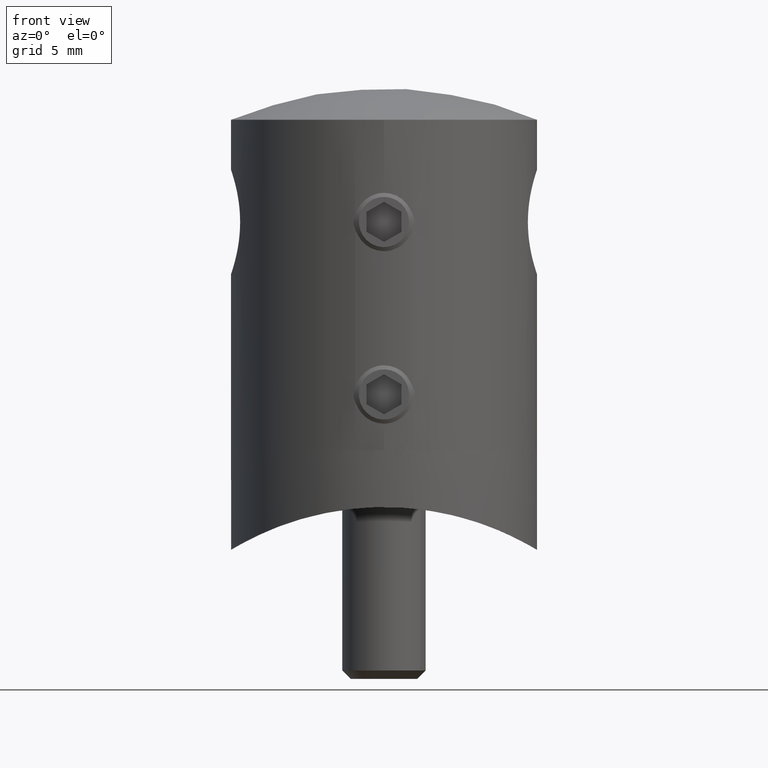
[diagram: clean part render]
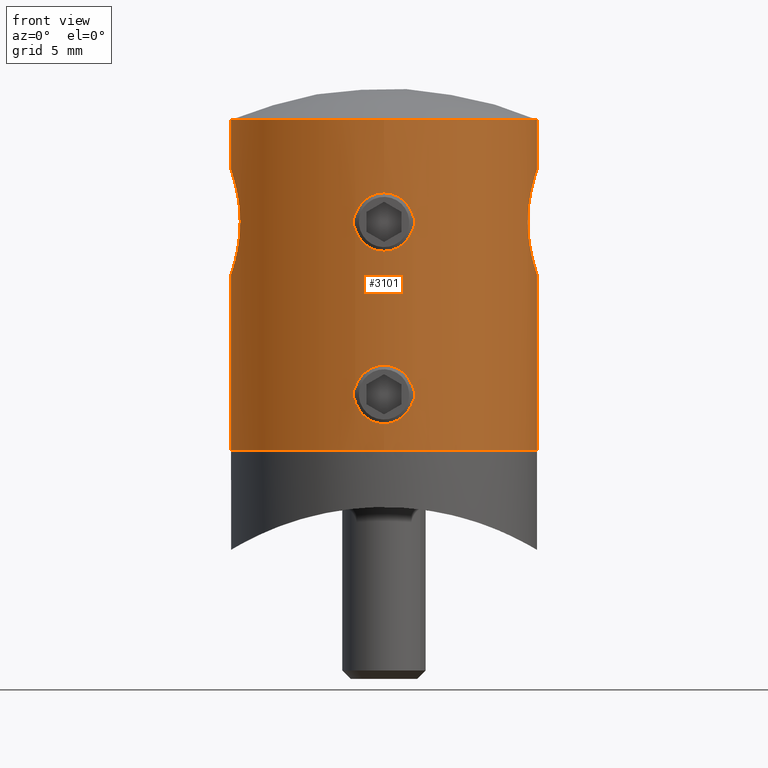
[diagram: same view with one face highlighted and labeled with its STEP entity id]
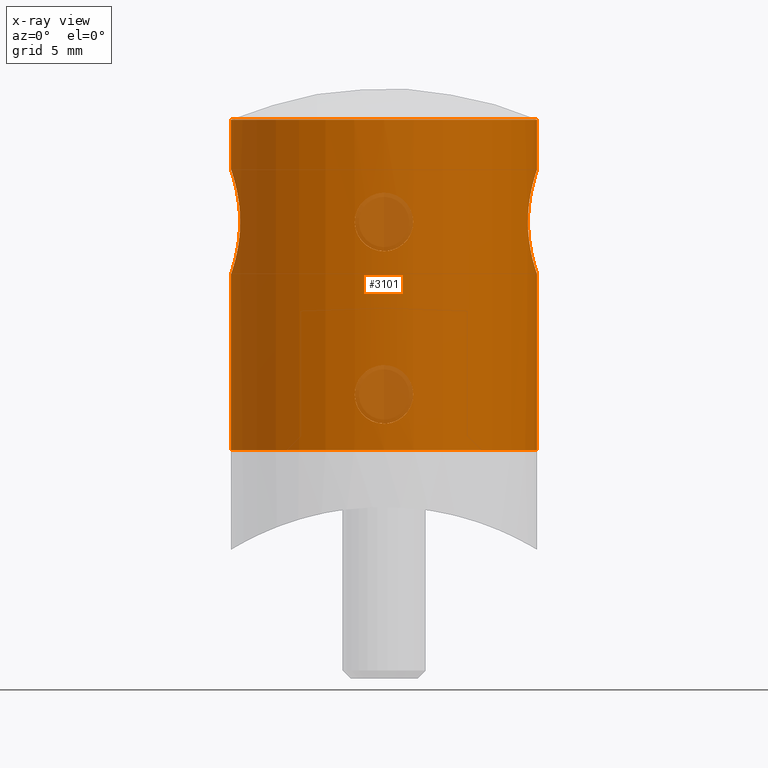
[diagram: x-ray of the same camera — body ghosted, the highlighted face saturated]
A machine part, front view. The second image highlights one B-rep face of the part: STEP entity #3101.
The next image is the same camera in x-ray: the body ghosted, the highlighted face saturated — about 5% of this face is hidden behind the body in this view.
In plain terms, the highlighted cylindrical surface (bore or boss wall) has radius 11 mm, axis along (0, 0, 1).
Its self-contained STEP definition (entity closure, byte-faithful):
#204 = CARTESIAN_POINT ( 'NONE',  ( -0.9322983872529648774, -10.96116125874258174, -10.88673070377028118 ) ) ;
#260 = CARTESIAN_POINT ( 'NONE',  ( -2.086371845620103915, -10.80036110415988482, -8.724425957257206932 ) ) ;
#383 = CARTESIAN_POINT ( 'NONE',  ( 0.5505417721006465870, -10.98913941872515920, -6.955053806371497060 ) ) ;
#441 = CARTESIAN_POINT ( 'NONE',  ( 1.821258053761724227, -10.84845420623088330, -7.945612156517057656 ) ) ;
#500 = CARTESIAN_POINT ( 'NONE',  ( -10.63275843213798311, 2.824123972555439899, 0.9209495259034766734 ) ) ;
#509 = CARTESIAN_POINT ( 'NONE',  ( -1.280823970048206473, -10.92577857814184661, 1.730181130698638770 ) ) ;
#692 = CARTESIAN_POINT ( 'NONE',  ( -1.992922399063346006, -10.81809270954977897, 4.076203121792942419 ) ) ;
#727 = CARTESIAN_POINT ( 'NONE',  ( -11.00003276275096198, -0.2445556584333137551, 7.150096104076023806 ) ) ;
#749 = CARTESIAN_POINT ( 'NONE',  ( 2.100101276507925885, -10.79766524018844898, 3.262846557347955034 ) ) ;
#791 = CARTESIAN_POINT ( 'NONE',  ( -10.38433889131838583, 3.628791964230503098, 4.377200943903710950 ) ) ;
#797 = CARTESIAN_POINT ( 'NONE',  ( 10.71798711372333557, -2.481124809159016120, 0.5776982537552508568 ) ) ;
#808 = CARTESIAN_POINT ( 'NONE',  ( 1.386736755965821910, -10.91267702308485532, 4.982939538335889651 ) ) ;
#818 = CIRCLE ( 'NONE', #14492, 10.99999999999999467 ) ;
#842 = CARTESIAN_POINT ( 'NONE',  ( -10.50906015724648057, 3.252701950667618913, 1.517697639025899381 ) ) ;
#848 = EDGE_CURVE ( 'NONE', #3650, #3650, #818, .T. ) ;
#850 = CARTESIAN_POINT ( 'NONE',  ( 10.71851059081093283, -2.478933855611270776, 6.224335491978610690 ) ) ;
#903 = CARTESIAN_POINT ( 'NONE',  ( -10.99150359302899638, -0.4950624536135366793, -0.3252801805247700906 ) ) ;
#908 = CARTESIAN_POINT ( 'NONE',  ( 10.40937885425879728, -3.557362811691873183, 4.611919087775657289 ) ) ;
#919 = CARTESIAN_POINT ( 'NONE',  ( 1.580486696390910106, -10.88630426008027996, 4.789531653077755635 ) ) ;
#964 = CARTESIAN_POINT ( 'NONE',  ( -10.87499265123514469, -1.669402043811161418, 0.03310183413829668325 ) ) ;
#969 = CARTESIAN_POINT ( 'NONE',  ( 10.34105648623548568, 3.750006766465721952, 3.152964245166342661 ) ) ;
#978 = CARTESIAN_POINT ( 'NONE',  ( 11.00000000000000000, -1.443930549546350327E-16, -0.3500000000000030864 ) ) ;
#983 = CARTESIAN_POINT ( 'NONE',  ( 2.033263212878623882, -10.81048461628543755, 2.857180135278210020 ) ) ;
#1033 = CARTESIAN_POINT ( 'NONE',  ( 10.35008321273575937, -3.725372842932206829, 3.894621052497162506 ) ) ;
#1414 = CARTESIAN_POINT ( 'NONE',  ( -0.9319663072103629986, -10.96118774137462815, -7.113117520548483341 ) ) ;
#1421 = FACE_BOUND ( 'NONE', #14101, .T. ) ;
#1477 = CARTESIAN_POINT ( 'NONE',  ( -0.6781069570240135791, -10.97981643080941083, -7.007750607009238131 ) ) ;
#1500 = EDGE_CURVE ( 'NONE', #4700, #4700, #3415, .T. ) ;
#1594 = CARTESIAN_POINT ( 'NONE',  ( -0.1390778096618653092, -10.99999999999999645, -11.09999999999999254 ) ) ;
#1775 = CARTESIAN_POINT ( 'NONE',  ( 1.669073131240823349, -10.87290827909674107, -7.718239684868305694 ) ) ;
#1837 = CARTESIAN_POINT ( 'NONE',  ( 0.2735815360057507473, -11.00002099589623938, 5.500109978512680797 ) ) ;
#1897 = CARTESIAN_POINT ( 'NONE',  ( 1.052429674837027873, -10.95014267461733937, -7.177551404401405932 ) ) ;
#1961 = CARTESIAN_POINT ( 'NONE',  ( -1.281990447053926951, -10.92563686889391938, 5.068884418742695352 ) ) ;
#2119 = CARTESIAN_POINT ( 'NONE',  ( -10.58959297617900930, -2.997987436808903450, 5.705334380848598563 ) ) ;
#2139 = CARTESIAN_POINT ( 'NONE',  ( 0.1390778096618647541, -11.00000000000000355, 1.300000000000004485 ) ) ;
#2174 = CARTESIAN_POINT ( 'NONE',  ( -10.47232722951106432, 3.367545204379542856, 5.068297738949381959 ) ) ;
#2182 = CARTESIAN_POINT ( 'NONE',  ( 10.50946900887539925, -3.251303887255801328, 5.284328831529189863 ) ) ;
#2226 = CARTESIAN_POINT ( 'NONE',  ( -10.50946900887540458, 3.251303887255800884, 5.284328831529187198 ) ) ;
#2230 = CARTESIAN_POINT ( 'NONE',  ( 10.99999999999999467, -0.2497599630417688954, -0.3500000000000030864 ) ) ;
#2290 = CARTESIAN_POINT ( 'NONE',  ( -10.93497449603742666, 1.215798824794269262, 6.955855729849781177 ) ) ;
#2296 = CARTESIAN_POINT ( 'NONE',  ( 10.83941008244509163, -1.884141343226918730, 0.1484942451694369614 ) ) ;
#2350 = CARTESIAN_POINT ( 'NONE',  ( 10.47215576513923452, 3.368049373994114859, 1.733103302634683374 ) ) ;
#2367 = ORIENTED_EDGE ( 'NONE', *, *, #8816, .T. ) ;
#2410 = CARTESIAN_POINT ( 'NONE',  ( 10.34992289245837682, 3.725820230002461653, 2.908148717270820249 ) ) ;
#2588 = ORIENTED_EDGE ( 'NONE', *, *, #9973, .T. ) ;
#2740 = CARTESIAN_POINT ( 'NONE',  ( -1.834681010053395678, -10.84644128760293569, -10.05769048629040796 ) ) ;
#2789 = CARTESIAN_POINT ( 'NONE',  ( -0.5472116004057776539, -10.98720989896580669, -6.967886480110341729 ) ) ;
#2809 = CARTESIAN_POINT ( 'NONE',  ( -10.71798711372333024, 2.481124809159015676, 0.5776982537552513008 ) ) ;
#2847 = CARTESIAN_POINT ( 'NONE',  ( -5.421010862427522170E-17, -11.00000000000000000, -11.09999999999999787 ) ) ;
#3077 = CARTESIAN_POINT ( 'NONE',  ( 1.059417076819560322, -10.95179245714164651, -10.83370096287937479 ) ) ;
#3101 = ADVANCED_FACE ( 'NONE', ( #1421, #13099, #11816, #15012, #10771, #6753 ), #4405, .T. ) ;
#3142 = CARTESIAN_POINT ( 'NONE',  ( 2.100101276507924997, -10.79766524018844898, -9.137153442652046209 ) ) ;
#3202 = CARTESIAN_POINT ( 'NONE',  ( 1.885922255304093076, -10.83725952041489293, -8.066019305492174496 ) ) ;
#3206 = CARTESIAN_POINT ( 'NONE',  ( 0.9298327460409496759, -10.96136311852415623, 5.287892041088646522 ) ) ;
#3231 = VERTEX_POINT ( 'NONE', #12788 ) ;
#3234 = CARTESIAN_POINT ( 'NONE',  ( -10.99999999999999645, -2.439454888092384977E-16, -0.3500000000000030864 ) ) ;
#3291 = ORIENTED_EDGE ( 'NONE', *, *, #10426, .T. ) ;
#3415 = B_SPLINE_CURVE_WITH_KNOTS ( 'NONE', 3,
 ( #3234, #4139, #12325, #13596, #7662, #11326, #9176, #6848, #2809, #500, #6396, #842, #10294, #13077, #9136, #12898, #7657, #10363, #16985, #791, #10239, #2174, #2226, #4940, #15864, #11653, #3647, #3529, #13016, #2290, #4891, #14380, #4773, #727, #11700, #14324, #12961, #15808, #15748, #6272, #17091, #2119, #17200, #3589, #9015, #4833, #8907, #7767, #17151, #6212, #9070, #3421, #5001, #14259, #7709, #11759, #11525, #14439, #964, #6166, #6338, #903, #17035, #13136 ),
 .UNSPECIFIED., .T., .F.,
 ( 4, 2, 2, 2, 2, 2, 2, 2, 2, 2, 2, 2, 2, 2, 2, 2, 2, 2, 2, 2, 2, 2, 2, 2, 2, 2, 2, 2, 2, 2, 2, 4 ),
 ( 0.000000000000000000, 0.0007382494569924613007, 0.001476498913984922601, 0.002214748370977383685, 0.002952997827969846070, 0.003691247284962308021, 0.004429496741954769973, 0.005167746198947231924, 0.005905995655939693008, 0.006644245112932154092, 0.007382494569924617778, 0.008120744026917080596, 0.008858993483909541680, 0.009597242940902006234, 0.01033549239789446732, 0.01107374185488693187, 0.01181199131187939469, 0.01255024076887185924, 0.01328849022586432206, 0.01402673968285678661, 0.01476498913984925117, 0.01624148805383417507, 0.01697973751082663615, 0.01771798696781909724, 0.01845623642481155832, 0.01919448588180402288, 0.01993273533879648396, 0.02067098479578894504, 0.02140923425278140613, 0.02214748370977386721, 0.02288573316676632829, 0.02362398262375878938 ),
 .UNSPECIFIED. ) ;
#3421 = CARTESIAN_POINT ( 'NONE',  ( -10.47215576513923629, -3.368049373994113527, 1.733103302634679821 ) ) ;
#3529 = CARTESIAN_POINT ( 'NONE',  ( -10.83897786099367266, 1.886558884749229392, 6.650055604040319146 ) ) ;
#3536 = CARTESIAN_POINT ( 'NONE',  ( 10.38445892217090538, -3.628452350616251376, 2.421239985724306543 ) ) ;
#3550 = CARTESIAN_POINT ( 'NONE',  ( 1.670711584421386231, -10.87265779864739379, 2.120311429146117810 ) ) ;
#3589 = CARTESIAN_POINT ( 'NONE',  ( -10.40955582870981644, -3.556840867476817714, 4.613345872957582472 ) ) ;
#3595 = CARTESIAN_POINT ( 'NONE',  ( 10.63283914025867816, -2.823882816833054754, 5.879449509173533706 ) ) ;
#3606 = CARTESIAN_POINT ( 'NONE',  ( 0.5474969020630475747, -10.98720387291686507, 1.367917686179494385 ) ) ;
#3647 = CARTESIAN_POINT ( 'NONE',  ( -10.76063179134625081, 2.291582193115867749, 6.378358089144823495 ) ) ;
#3650 = VERTEX_POINT ( 'NONE', #7486 ) ;
#3653 = CARTESIAN_POINT ( 'NONE',  ( 10.95880613101530443, -0.9817425675553359543, 7.027677885358044385 ) ) ;
#3707 = CARTESIAN_POINT ( 'NONE',  ( 10.76121106076656453, 2.288860122691051657, 0.4195605451953431375 ) ) ;
#3722 = CARTESIAN_POINT ( 'NONE',  ( 2.086595700918373986, -10.80031737092473598, 3.126264581591914116 ) ) ;
#3756 = B_SPLINE_CURVE_WITH_KNOTS ( 'NONE', 3,
 ( #12856, #7374, #7439, #8685, #12923, #6004, #4734, #509, #15477, #14230, #4796, #16892, #14282, #8867, #8807, #11435, #692, #10203, #12794, #6127, #16831, #10086, #1961, #14169, #15536, #15595, #6182, #15659, #7550, #1837, #11308, #3206, #12681, #4556, #808, #919, #15943, #4852, #7674, #11778, #6293, #749, #3722, #983, #13093, #4957, #14456, #3550, #17167, #7788, #15824, #11841, #3606, #9089, #2139, #10316 ),
 .UNSPECIFIED., .T., .F.,
 ( 4, 2, 2, 2, 2, 2, 2, 2, 2, 2, 2, 2, 2, 2, 2, 2, 2, 2, 2, 2, 2, 2, 2, 2, 2, 2, 2, 4 ),
 ( 0.000000000000000000, 0.0004112398612379172835, 0.0008224797224758345670, 0.001233719583713751688, 0.001644959444951669134, 0.002467439167427503376, 0.003289918889903338268, 0.003701158751141255497, 0.004112398612379170558, 0.004523638473617086486, 0.004934878334855002414, 0.005346118196092918343, 0.005757358057330834271, 0.006168597918568750199, 0.006579837779806666127, 0.007402317502282496249, 0.007813557363520412177, 0.008224797224758327238, 0.008636037085996242299, 0.009047276947234159095, 0.009869756669709989216, 0.01028099653094790601, 0.01069223639218581934, 0.01110347625342373440, 0.01151471611466164773, 0.01233719583713747958, 0.01274843569837539464, 0.01315967555961331144 ),
 .UNSPECIFIED. ) ;
#3770 = CARTESIAN_POINT ( 'NONE',  ( 10.34099645109633769, -3.750172320357266109, 3.644038959430600411 ) ) ;
#3989 = EDGE_CURVE ( 'NONE', #10442, #10442, #6265, .T. ) ;
#4057 = CARTESIAN_POINT ( 'NONE',  ( 11.00000000000000355, 0.2497599630417686178, -0.3500000000000033085 ) ) ;
#4088 = CARTESIAN_POINT ( 'NONE',  ( -1.887465525486915929, -10.83698959357260527, -8.069159390277093280 ) ) ;
#4139 = CARTESIAN_POINT ( 'NONE',  ( -10.99999999999999467, 0.2497599630417689509, -0.3500000000000030864 ) ) ;
#4208 = CARTESIAN_POINT ( 'NONE',  ( -0.6781376468636769461, -10.97981628967169243, -10.99225057744506806 ) ) ;
#4291 = EDGE_LOOP ( 'NONE', ( #8571 ) ) ;
#4317 = CARTESIAN_POINT ( 'NONE',  ( -2.044350993406146788, -10.80888394006649733, -9.552623370116647195 ) ) ;
#4379 = CARTESIAN_POINT ( 'NONE',  ( 0.9298327460409486767, -10.96136311852415801, -7.112107958911355610 ) ) ;
#4405 = CYLINDRICAL_SURFACE ( 'NONE', #16771, 10.99999999999999645 ) ;
#4489 = CARTESIAN_POINT ( 'NONE',  ( 1.992727468485251618, -10.81812777981166462, -9.676686333808367735 ) ) ;
#4556 = CARTESIAN_POINT ( 'NONE',  ( 1.281199630984558580, -10.92573843364915476, 5.069567192311198234 ) ) ;
#4700 = VERTEX_POINT ( 'NONE', #10197 ) ;
#4734 = CARTESIAN_POINT ( 'NONE',  ( -1.052791956378939187, -10.95010395737944897, 1.577794140304467962 ) ) ;
#4773 = CARTESIAN_POINT ( 'NONE',  ( -10.99996704100667877, 0.2474941381790446704, 7.149903320279731744 ) ) ;
#4791 = CARTESIAN_POINT ( 'NONE',  ( 0.000000000000000000, -10.99999999999999822, -11.09999999999999609 ) ) ;
#4796 = CARTESIAN_POINT ( 'NONE',  ( -1.834681010053394568, -10.84644128760293569, 2.342309513709591950 ) ) ;
#4833 = CARTESIAN_POINT ( 'NONE',  ( -10.35024099097652872, -3.724935343811505373, 3.897649050597928433 ) ) ;
#4852 = CARTESIAN_POINT ( 'NONE',  ( 1.821258053761725781, -10.84845420623088330, 4.454387843482938258 ) ) ;
#4891 = CARTESIAN_POINT ( 'NONE',  ( -10.95880613101530443, 0.9817425675553339559, 7.027677885358040832 ) ) ;
#4897 = CARTESIAN_POINT ( 'NONE',  ( 10.93497449603742311, -1.215798824794269928, 6.955855729849779401 ) ) ;
#4940 = CARTESIAN_POINT ( 'NONE',  ( -10.58942082823927500, 2.980617777952995429, 5.688578111921762215 ) ) ;
#4945 = CARTESIAN_POINT ( 'NONE',  ( 10.58959297617901107, 2.997987436808904782, 5.705334380848595899 ) ) ;
#4957 = CARTESIAN_POINT ( 'NONE',  ( 1.887604345443004039, -10.83696457773362098, 2.469507123571951013 ) ) ;
#5001 = CARTESIAN_POINT ( 'NONE',  ( -10.50938942164687617, -3.251618732956292668, 1.515940146406599576 ) ) ;
#5006 = CARTESIAN_POINT ( 'NONE',  ( 10.34106139473075281, 3.749993230722020066, 3.647241141891795380 ) ) ;
#5069 = CARTESIAN_POINT ( 'NONE',  ( 10.95921652336182817, 0.9766326139445675736, -0.2289100283374783662 ) ) ;
#5130 = CARTESIAN_POINT ( 'NONE',  ( 10.59006487021693133, 2.978391586902707555, 1.108299873128717916 ) ) ;
#5454 = CARTESIAN_POINT ( 'NONE',  ( -1.670043013049527181, -10.87275805320107658, -7.719523816417274809 ) ) ;
#5512 = CARTESIAN_POINT ( 'NONE',  ( -1.388537688308395968, -10.91244555373267389, -10.58133857723259474 ) ) ;
#5691 = CARTESIAN_POINT ( 'NONE',  ( -2.100080576060141979, -10.79766926613581823, -8.863934974792822885 ) ) ;
#5872 = CARTESIAN_POINT ( 'NONE',  ( 0.5474969020630485739, -10.98720387291686862, -11.03208231382050641 ) ) ;
#5939 = CARTESIAN_POINT ( 'NONE',  ( 0.6806038088607760939, -10.97965432502793348, -10.99135240385638923 ) ) ;
#5998 = CARTESIAN_POINT ( 'NONE',  ( 1.670711584421387341, -10.87265779864739201, -10.27968857085388166 ) ) ;
#6004 = CARTESIAN_POINT ( 'NONE',  ( -0.9322983872529652105, -10.96116125874257996, 1.513269296229716065 ) ) ;
#6084 = EDGE_LOOP ( 'NONE', ( #2588 ) ) ;
#6127 = CARTESIAN_POINT ( 'NONE',  ( -1.670043013049525404, -10.87275805320107125, 4.680476183582724659 ) ) ;
#6166 = CARTESIAN_POINT ( 'NONE',  ( -10.93501302802506459, -1.215672005608975148, -0.1559876290480026462 ) ) ;
#6182 = CARTESIAN_POINT ( 'NONE',  ( -0.5472116004057775429, -10.98720989896580846, 5.432113519889659514 ) ) ;
#6212 = CARTESIAN_POINT ( 'NONE',  ( -10.38427878397903648, -3.628966023915412009, 2.423137846016391261 ) ) ;
#6265 = B_SPLINE_CURVE_WITH_KNOTS ( 'NONE', 3,
 ( #2847, #1594, #15117, #10844, #4208, #204, #9736, #16534, #5512, #8448, #2740, #4317, #13807, #5691, #260, #9618, #12210, #4088, #13579, #5454, #15004, #6833, #16300, #8212, #1414, #1477, #2789, #12275, #6888, #16355, #383, #4379, #1897, #16584, #9906, #7194, #1775, #441, #3202, #14097, #11247, #3142, #12616, #10024, #4489, #13987, #8614, #5998, #15472, #12512, #3077, #5939, #5872, #15340, #7254, #11369 ),
 .UNSPECIFIED., .T., .F.,
 ( 4, 2, 2, 2, 2, 2, 2, 2, 2, 2, 2, 2, 2, 2, 2, 2, 2, 2, 2, 2, 2, 2, 2, 2, 2, 2, 2, 4 ),
 ( 0.000000000000000000, 0.0004112398612379134888, 0.0008224797224758267607, 0.001233719583713739762, 0.001644959444951652654, 0.002467439167427479089, 0.003289918889903304874, 0.003701158751141219935, 0.004112398612379135864, 0.004523638473617050924, 0.004934878334854965118, 0.005346118196092881046, 0.005757358057330795240, 0.006168597918568711168, 0.006579837779806626229, 0.007402317502282455483, 0.007813557363520372279, 0.008224797224758285605, 0.008636037085996200666, 0.009047276947234115727, 0.009869756669709951052, 0.01028099653094787305, 0.01069223639218579332, 0.01110347625342371358, 0.01151471611466163385, 0.01233719583713747785, 0.01274843569837539811, 0.01315967555961331664 ),
 .UNSPECIFIED. ) ;
#6272 = CARTESIAN_POINT ( 'NONE',  ( -10.76084378530928198, -2.290578046412766522, 6.379117731621629872 ) ) ;
#6279 = CARTESIAN_POINT ( 'NONE',  ( 10.50383179172310122, 3.272521309557216984, 5.296418976492189401 ) ) ;
#6293 = CARTESIAN_POINT ( 'NONE',  ( 2.099795748563275666, -10.79772466112062901, 3.678932909499353254 ) ) ;
#6338 = CARTESIAN_POINT ( 'NONE',  ( -10.95921652336183350, -0.9766326139445657972, -0.2289100283374791156 ) ) ;
#6344 = CARTESIAN_POINT ( 'NONE',  ( 10.93501302802506636, 1.215672005608977368, -0.1559876290480019245 ) ) ;
#6396 = CARTESIAN_POINT ( 'NONE',  ( -10.59000095808879571, 2.978639803027684607, 1.108529493573000790 ) ) ;
#6402 = CARTESIAN_POINT ( 'NONE',  ( 10.58942082823927144, -2.980617777952998093, 5.688578111921763103 ) ) ;
#6454 = CARTESIAN_POINT ( 'NONE',  ( 10.95919953862333429, -0.9768606267610954186, -0.2288591530901216420 ) ) ;
#6753 = FACE_OUTER_BOUND ( 'NONE', #15488, .T. ) ;
#6833 = CARTESIAN_POINT ( 'NONE',  ( -1.387671354983934568, -10.91256495734889675, -7.417775272541513587 ) ) ;
#6848 = CARTESIAN_POINT ( 'NONE',  ( -10.76089843778298416, 2.290385196509300059, 0.4206688793347821420 ) ) ;
#6888 = CARTESIAN_POINT ( 'NONE',  ( -0.1380551056559362610, -10.99998945361097569, -6.900055242994412197 ) ) ;
#7194 = CARTESIAN_POINT ( 'NONE',  ( 1.580486696390908996, -10.88630426008028351, -7.610468346922246496 ) ) ;
#7254 = CARTESIAN_POINT ( 'NONE',  ( 0.1390778096618671689, -11.00000000000000355, -11.10000000000000142 ) ) ;
#7374 = CARTESIAN_POINT ( 'NONE',  ( -0.1390778096618651982, -10.99999999999999467, 1.300000000000004041 ) ) ;
#7439 = CARTESIAN_POINT ( 'NONE',  ( -0.2757686476963308597, -10.99736528176723205, 1.313679176500867296 ) ) ;
#7486 = CARTESIAN_POINT ( 'NONE',  ( 0.000000000000000000, -10.99999999999999467, 10.74878637916746804 ) ) ;
#7550 = CARTESIAN_POINT ( 'NONE',  ( -0.1380551056559368717, -10.99998945361096681, 5.499944757005584606 ) ) ;
#7601 = CARTESIAN_POINT ( 'NONE',  ( 10.99150359302899105, 0.4950624536135370124, -0.3252801805247697020 ) ) ;
#7657 = CARTESIAN_POINT ( 'NONE',  ( -10.34112209962642481, 3.749825829899132490, 3.150693579073733819 ) ) ;
#7662 = CARTESIAN_POINT ( 'NONE',  ( -10.93496518265985351, 1.216067739068124487, -0.1558390740964978594 ) ) ;
#7663 = CARTESIAN_POINT ( 'NONE',  ( 10.83911987051621395, 1.885732534353163459, 6.650523504676210784 ) ) ;
#7674 = CARTESIAN_POINT ( 'NONE',  ( 1.885922255304093742, -10.83725952041489116, 4.333980694507823195 ) ) ;
#7709 = CARTESIAN_POINT ( 'NONE',  ( -10.63278538839141341, -2.824044660073749213, 0.9208151359288596627 ) ) ;
#7767 = CARTESIAN_POINT ( 'NONE',  ( -10.34105648623548568, -3.750006766465723285, 3.152964245166336887 ) ) ;
#7774 = CARTESIAN_POINT ( 'NONE',  ( 10.76089843778298416, -2.290385196509298282, 0.4206688793347813649 ) ) ;
#7788 = CARTESIAN_POINT ( 'NONE',  ( 1.293096815573843372, -10.92546660261073299, 1.722958403669058836 ) ) ;
#7840 = CARTESIAN_POINT ( 'NONE',  ( 10.47232722951106432, -3.367545204379544188, 5.068297738949381070 ) ) ;
#8212 = CARTESIAN_POINT ( 'NONE',  ( -1.054892582810820212, -10.94989690070195998, -7.179045209734632671 ) ) ;
#8378 = DIRECTION ( 'NONE',  ( -0.000000000000000000, 1.081595917263183534E-17, 1.000000000000000000 ) ) ;
#8448 = CARTESIAN_POINT ( 'NONE',  ( -1.678338565524258641, -10.87295724076965264, -10.29145425403354608 ) ) ;
#8571 = ORIENTED_EDGE ( 'NONE', *, *, #1500, .T. ) ;
#8614 = CARTESIAN_POINT ( 'NONE',  ( 1.823215479922152271, -10.84812657183626783, -10.05107818475415904 ) ) ;
#8685 = CARTESIAN_POINT ( 'NONE',  ( -0.5445907593099170718, -10.98733418043456744, 1.367217711978823580 ) ) ;
#8807 = CARTESIAN_POINT ( 'NONE',  ( -2.086371845620103027, -10.80036110415988482, 3.675574042742794756 ) ) ;
#8816 = EDGE_CURVE ( 'NONE', #10226, #10226, #16284, .T. ) ;
#8867 = CARTESIAN_POINT ( 'NONE',  ( -2.100080576060140647, -10.79766926613582001, 3.536065025207176138 ) ) ;
#8907 = CARTESIAN_POINT ( 'NONE',  ( -10.34106139473075281, -3.749993230722019621, 3.647241141891788274 ) ) ;
#8962 = CARTESIAN_POINT ( 'NONE',  ( 0.000000000000000000, 0.000000000000000000, 13.00000000000000178 ) ) ;
#8968 = CARTESIAN_POINT ( 'NONE',  ( 10.41003236052403658, -3.555417399542265322, 2.183034158172001860 ) ) ;
#9015 = CARTESIAN_POINT ( 'NONE',  ( -10.38453477348497600, -3.628232272767059730, 4.379146806147447890 ) ) ;
#9020 = CARTESIAN_POINT ( 'NONE',  ( 10.63275843213799199, -2.824123972555440343, 0.9209495259034757852 ) ) ;
#9070 = CARTESIAN_POINT ( 'NONE',  ( -10.40983305181367236, -3.556006016357218691, 2.184630756938123142 ) ) ;
#9076 = CARTESIAN_POINT ( 'NONE',  ( 10.99150671944556557, -0.4960144378056947079, 7.125296630652952601 ) ) ;
#9089 = CARTESIAN_POINT ( 'NONE',  ( 0.2763807230148077054, -10.99736402501771515, 1.313681451969391123 ) ) ;
#9136 = CARTESIAN_POINT ( 'NONE',  ( -10.38445892217090893, 3.628452350616251376, 2.421239985724307875 ) ) ;
#9140 = CARTESIAN_POINT ( 'NONE',  ( 10.76084378530928376, 2.290578046412765634, 6.379117731621629872 ) ) ;
#9176 = CARTESIAN_POINT ( 'NONE',  ( -10.83941008244509696, 1.884141343226920284, 0.1484942451694376830 ) ) ;
#9192 = CARTESIAN_POINT ( 'NONE',  ( 10.99167352781289786, 0.4925041697186225420, 7.125787232761856771 ) ) ;
#9618 = CARTESIAN_POINT ( 'NONE',  ( -2.032659403802354436, -10.81059865162793621, -8.454853891728369319 ) ) ;
#9736 = CARTESIAN_POINT ( 'NONE',  ( -1.052791956378938742, -10.95010395737945252, -10.82220585969553284 ) ) ;
#9875 = AXIS2_PLACEMENT_3D ( 'NONE', #13799, #8378, #16462 ) ;
#9906 = CARTESIAN_POINT ( 'NONE',  ( 1.386736755965818357, -10.91267702308485887, -7.417060461664108928 ) ) ;
#9973 = EDGE_CURVE ( 'NONE', #3231, #3231, #3756, .T. ) ;
#10015 = DIRECTION ( 'NONE',  ( 0.000000000000000000, -1.000000000000000000, 0.000000000000000000 ) ) ;
#10024 = CARTESIAN_POINT ( 'NONE',  ( 2.033263212878624770, -10.81048461628543755, -9.542819864721787226 ) ) ;
#10078 = CARTESIAN_POINT ( 'NONE',  ( 0.000000000000000000, -11.00000000000000000, -13.00000000000000178 ) ) ;
#10086 = CARTESIAN_POINT ( 'NONE',  ( -1.387671354983934791, -10.91256495734889498, 4.982224727458483216 ) ) ;
#10197 = CARTESIAN_POINT ( 'NONE',  ( -10.99999999999999645, 0.000000000000000000, -0.3500000000000030864 ) ) ;
#10203 = CARTESIAN_POINT ( 'NONE',  ( -1.887465525486917262, -10.83698959357259994, 4.330840609722904411 ) ) ;
#10226 = VERTEX_POINT ( 'NONE', #10078 ) ;
#10239 = CARTESIAN_POINT ( 'NONE',  ( -10.40937885425879905, 3.557362811691872739, 4.611919087775659953 ) ) ;
#10294 = CARTESIAN_POINT ( 'NONE',  ( -10.47223203717380713, 3.367806822208789352, 1.732703999456621791 ) ) ;
#10301 = CARTESIAN_POINT ( 'NONE',  ( 10.38433889131837873, -3.628791964230503986, 4.377200943903709174 ) ) ;
#10316 = CARTESIAN_POINT ( 'NONE',  ( -2.303929616531696922E-16, -11.00000000000000000, 1.300000000000004263 ) ) ;
#10328 = EDGE_LOOP ( 'NONE', ( #14788 ) ) ;
#10363 = CARTESIAN_POINT ( 'NONE',  ( -10.34099645109633236, 3.750172320357266109, 3.644038959430601743 ) ) ;
#10369 = CARTESIAN_POINT ( 'NONE',  ( 10.87530377798831260, -1.667213767887357978, 6.767888805474951752 ) ) ;
#10416 = CARTESIAN_POINT ( 'NONE',  ( 10.93522634238201796, 1.213655068432574646, 6.956633872417620879 ) ) ;
#10426 = EDGE_CURVE ( 'NONE', #13407, #13407, #14432, .T. ) ;
#10442 = VERTEX_POINT ( 'NONE', #4791 ) ;
#10477 = CARTESIAN_POINT ( 'NONE',  ( 10.40983305181367236, 3.556006016357221355, 2.184630756938127583 ) ) ;
#10533 = CARTESIAN_POINT ( 'NONE',  ( 10.87498413903323247, -1.669432319011750154, 0.03313083130443855717 ) ) ;
#10771 = FACE_OUTER_BOUND ( 'NONE', #10328, .T. ) ;
#10844 = CARTESIAN_POINT ( 'NONE',  ( -0.5445907593099171828, -10.98733418043456922, -11.03278228802117056 ) ) ;
#10914 = ORIENTED_EDGE ( 'NONE', *, *, #3989, .T. ) ;
#11247 = CARTESIAN_POINT ( 'NONE',  ( 2.099795748563274334, -10.79772466112062546, -8.721067090500651986 ) ) ;
#11308 = CARTESIAN_POINT ( 'NONE',  ( 0.5505417721006471421, -10.98913941872515565, 5.444946193628508624 ) ) ;
#11326 = CARTESIAN_POINT ( 'NONE',  ( -10.87498413903323780, 1.669432319011751931, 0.03313083130443838370 ) ) ;
#11369 = CARTESIAN_POINT ( 'NONE',  ( -5.421010862427522170E-17, -11.00000000000000000, -11.09999999999999787 ) ) ;
#11435 = CARTESIAN_POINT ( 'NONE',  ( -2.032659403802354436, -10.81059865162793798, 3.945146108271627927 ) ) ;
#11525 = CARTESIAN_POINT ( 'NONE',  ( -10.76121106076656631, -2.288860122691050769, 0.4195605451953422493 ) ) ;
#11592 = DIRECTION ( 'NONE',  ( 0.000000000000000000, -1.000000000000000000, 0.000000000000000000 ) ) ;
#11653 = CARTESIAN_POINT ( 'NONE',  ( -10.71851059081093283, 2.478933855611269887, 6.224335491978613355 ) ) ;
#11657 = CARTESIAN_POINT ( 'NONE',  ( 10.87544509650079583, 1.666381630135890912, 6.768349060045010468 ) ) ;
#11700 = CARTESIAN_POINT ( 'NONE',  ( -10.99167352781289608, -0.4925041697186244294, 7.125787232761859435 ) ) ;
#11708 = CARTESIAN_POINT ( 'NONE',  ( 10.38453477348497245, 3.628232272767057065, 4.379146806147444337 ) ) ;
#11759 = CARTESIAN_POINT ( 'NONE',  ( -10.71817117192273017, -2.480354830875092009, 0.5769828648615886735 ) ) ;
#11766 = CARTESIAN_POINT ( 'NONE',  ( 11.00000000000000000, -1.355252715606880543E-16, -0.3500000000000031974 ) ) ;
#11778 = CARTESIAN_POINT ( 'NONE',  ( 2.044856290180035341, -10.80879962882139189, 3.951954269454755142 ) ) ;
#11816 = FACE_BOUND ( 'NONE', #4291, .T. ) ;
#11828 = CARTESIAN_POINT ( 'NONE',  ( 10.71817117192272661, 2.480354830875093786, 0.5769828648615905609 ) ) ;
#11841 = CARTESIAN_POINT ( 'NONE',  ( 0.6806038088607768710, -10.97965432502792993, 1.408647596143614900 ) ) ;
#11886 = CARTESIAN_POINT ( 'NONE',  ( 10.50906015724648768, -3.252701950667618913, 1.517697639025899381 ) ) ;
#12210 = CARTESIAN_POINT ( 'NONE',  ( -1.992922399063346006, -10.81809270954978075, -8.323796878207067707 ) ) ;
#12275 = CARTESIAN_POINT ( 'NONE',  ( -0.2774242944193053839, -10.99732956950990115, -6.913864420944086042 ) ) ;
#12325 = CARTESIAN_POINT ( 'NONE',  ( -10.99151025639372037, 0.4949883787220478726, -0.3253002485722080728 ) ) ;
#12512 = CARTESIAN_POINT ( 'NONE',  ( 1.293096815573841152, -10.92546660261073121, -10.67704159633094463 ) ) ;
#12616 = CARTESIAN_POINT ( 'NONE',  ( 2.086595700918373542, -10.80031737092473421, -9.273735418408087128 ) ) ;
#12681 = CARTESIAN_POINT ( 'NONE',  ( 1.052429674837028317, -10.95014267461733937, 5.222448595598597976 ) ) ;
#12788 = CARTESIAN_POINT ( 'NONE',  ( 0.000000000000000000, -10.99999999999999822, 1.300000000000003819 ) ) ;
#12794 = CARTESIAN_POINT ( 'NONE',  ( -1.821864279235780870, -10.84835111419836906, 4.453315465662026185 ) ) ;
#12856 = CARTESIAN_POINT ( 'NONE',  ( -2.303929616531696922E-16, -11.00000000000000000, 1.300000000000004263 ) ) ;
#12898 = CARTESIAN_POINT ( 'NONE',  ( -10.35002026628860960, 3.725551510093844776, 2.906134054752691043 ) ) ;
#12923 = CARTESIAN_POINT ( 'NONE',  ( -0.6781376468636776123, -10.97981628967169776, 1.407749422554937180 ) ) ;
#12961 = CARTESIAN_POINT ( 'NONE',  ( -10.93522634238201796, -1.213655068432577755, 6.956633872417619990 ) ) ;
#13016 = CARTESIAN_POINT ( 'NONE',  ( -10.87530377798831260, 1.667213767887356202, 6.767888805474950864 ) ) ;
#13022 = CARTESIAN_POINT ( 'NONE',  ( 10.83897786099367266, -1.886558884749230947, 6.650055604040320034 ) ) ;
#13077 = CARTESIAN_POINT ( 'NONE',  ( -10.41003236052404191, 3.555417399542265322, 2.183034158172001860 ) ) ;
#13082 = CARTESIAN_POINT ( 'NONE',  ( 10.34112209962642126, -3.749825829899128493, 3.150693579073732931 ) ) ;
#13093 = CARTESIAN_POINT ( 'NONE',  ( 1.992727468485252951, -10.81812777981166107, 2.723313666191631288 ) ) ;
#13099 = FACE_BOUND ( 'NONE', #6084, .T. ) ;
#13136 = CARTESIAN_POINT ( 'NONE',  ( -10.99999999999999645, -2.439454888092384977E-16, -0.3500000000000030864 ) ) ;
#13140 = CARTESIAN_POINT ( 'NONE',  ( 10.35024099097653050, 3.724935343811504485, 3.897649050597932874 ) ) ;
#13197 = CARTESIAN_POINT ( 'NONE',  ( 10.83945356060173459, 1.883823416132307971, 0.1483682032196232403 ) ) ;
#13260 = CARTESIAN_POINT ( 'NONE',  ( 10.99996704100668055, -0.2474941381790480843, 7.149903320279732633 ) ) ;
#13407 = VERTEX_POINT ( 'NONE', #978 ) ;
#13579 = CARTESIAN_POINT ( 'NONE',  ( -1.821864279235781092, -10.84835111419837617, -7.946684534337975947 ) ) ;
#13596 = CARTESIAN_POINT ( 'NONE',  ( -10.95919953862333962, 0.9768606267610956406, -0.2288591530901215865 ) ) ;
#13799 = CARTESIAN_POINT ( 'NONE',  ( 0.000000000000000000, -2.812149384884277619E-16, -13.00000000000000178 ) ) ;
#13807 = CARTESIAN_POINT ( 'NONE',  ( -2.099837753199914836, -10.79771649180664284, -9.275843938405992972 ) ) ;
#13987 = CARTESIAN_POINT ( 'NONE',  ( 1.887604345443003817, -10.83696457773361743, -9.930492876428047566 ) ) ;
#14034 = CARTESIAN_POINT ( 'NONE',  ( 0.000000000000000000, -2.434903461179736260E-17, 10.74878637916746804 ) ) ;
#14097 = CARTESIAN_POINT ( 'NONE',  ( 2.044856290180034897, -10.80879962882139722, -8.448045730545238996 ) ) ;
#14101 = EDGE_LOOP ( 'NONE', ( #10914 ) ) ;
#14169 = CARTESIAN_POINT ( 'NONE',  ( -1.054892582810818880, -10.94989690070195998, 5.220954790265365908 ) ) ;
#14230 = CARTESIAN_POINT ( 'NONE',  ( -1.678338565524257753, -10.87295724076965797, 2.108545745966448948 ) ) ;
#14259 = CARTESIAN_POINT ( 'NONE',  ( -10.59006487021693488, -2.978391586902705779, 1.108299873128714363 ) ) ;
#14282 = CARTESIAN_POINT ( 'NONE',  ( -2.099837753199915280, -10.79771649180663928, 3.124156061593999389 ) ) ;
#14324 = CARTESIAN_POINT ( 'NONE',  ( -10.95905614091289770, -0.9790484153157361646, 7.028431487773914021 ) ) ;
#14380 = CARTESIAN_POINT ( 'NONE',  ( -10.99150671944556557, 0.4960144378056927650, 7.125296630652949936 ) ) ;
#14387 = CARTESIAN_POINT ( 'NONE',  ( 10.71865550678860224, 2.478361584775591986, 6.224928791103489623 ) ) ;
#14432 = B_SPLINE_CURVE_WITH_KNOTS ( 'NONE', 3,
 ( #11766, #2230, #15870, #6454, #14502, #10533, #2296, #7774, #797, #9020, #14629, #11886, #15931, #8968, #3536, #17156, #13082, #3770, #1033, #10301, #908, #7840, #2182, #6402, #3595, #850, #17261, #13022, #10369, #4897, #3653, #9076, #13260, #15815, #9192, #17208, #10416, #11657, #7663, #9140, #14387, #4945, #6279, #17096, #11708, #13140, #5006, #969, #2410, #14445, #10477, #2350, #15756, #5130, #17042, #11828, #3707, #13197, #15703, #6344, #5069, #7601, #4057, #14863 ),
 .UNSPECIFIED., .T., .F.,
 ( 4, 2, 2, 2, 2, 2, 2, 2, 2, 2, 2, 2, 2, 2, 2, 2, 2, 2, 2, 2, 2, 2, 2, 2, 2, 2, 2, 2, 2, 2, 2, 4 ),
 ( 0.000000000000000000, 0.0007382494569924620597, 0.001476498913984924119, 0.002214748370977386287, 0.002952997827969847371, 0.003691247284962308889, 0.004429496741954769973, 0.005167746198947231924, 0.005905995655939693008, 0.006644245112932154959, 0.007382494569924617778, 0.008120744026917080596, 0.008858993483909541680, 0.009597242940902004499, 0.01033549239789446558, 0.01107374185488692840, 0.01181199131187938949, 0.01255024076887185230, 0.01328849022586431512, 0.01402673968285677621, 0.01476498913984923902, 0.01624148805383416466, 0.01697973751082662575, 0.01771798696781909030, 0.01845623642481155138, 0.01919448588180401247, 0.01993273533879647702, 0.02067098479578893810, 0.02140923425278139919, 0.02214748370977386027, 0.02288573316676632483, 0.02362398262375878591 ),
 .UNSPECIFIED. ) ;
#14439 = CARTESIAN_POINT ( 'NONE',  ( -10.83945356060173282, -1.883823416132306194, 0.1483682032196227130 ) ) ;
#14445 = CARTESIAN_POINT ( 'NONE',  ( 10.38427878397903648, 3.628966023915414230, 2.423137846016396590 ) ) ;
#14456 = CARTESIAN_POINT ( 'NONE',  ( 1.823215479922151827, -10.84812657183626960, 2.348921815245837319 ) ) ;
#14492 = AXIS2_PLACEMENT_3D ( 'NONE', #14034, #15389, #10015 ) ;
#14502 = CARTESIAN_POINT ( 'NONE',  ( 10.93496518265984996, -1.216067739068122933, -0.1558390740964974153 ) ) ;
#14629 = CARTESIAN_POINT ( 'NONE',  ( 10.59000095808879749, -2.978639803027683719, 1.108529493573000790 ) ) ;
#14788 = ORIENTED_EDGE ( 'NONE', *, *, #848, .F. ) ;
#14863 = CARTESIAN_POINT ( 'NONE',  ( 11.00000000000000000, -1.355252715606880543E-16, -0.3500000000000031974 ) ) ;
#15004 = CARTESIAN_POINT ( 'NONE',  ( -1.582902319642925049, -10.88596003962311975, -7.613101617243329677 ) ) ;
#15006 = EDGE_LOOP ( 'NONE', ( #3291 ) ) ;
#15012 = FACE_BOUND ( 'NONE', #15006, .T. ) ;
#15117 = CARTESIAN_POINT ( 'NONE',  ( -0.2757686476963308042, -10.99736528176723205, -11.08632082349912729 ) ) ;
#15340 = CARTESIAN_POINT ( 'NONE',  ( 0.2763807230148072058, -10.99736402501771515, -11.08631854803060968 ) ) ;
#15389 = DIRECTION ( 'NONE',  ( -0.000000000000000000, 1.081595917263183534E-17, 1.000000000000000000 ) ) ;
#15472 = CARTESIAN_POINT ( 'NONE',  ( 1.582514419226412228, -10.88600606640208035, -10.38718783353529673 ) ) ;
#15477 = CARTESIAN_POINT ( 'NONE',  ( -1.388537688308394413, -10.91244555373267211, 1.818661422767404279 ) ) ;
#15488 = EDGE_LOOP ( 'NONE', ( #2367 ) ) ;
#15536 = CARTESIAN_POINT ( 'NONE',  ( -0.9319663072103634427, -10.96118774137463170, 5.286882479451516126 ) ) ;
#15595 = CARTESIAN_POINT ( 'NONE',  ( -0.6781069570240140232, -10.97981643080941438, 5.392249392990757784 ) ) ;
#15659 = CARTESIAN_POINT ( 'NONE',  ( -0.2774242944193054949, -10.99732956950990292, 5.486135579055913425 ) ) ;
#15703 = CARTESIAN_POINT ( 'NONE',  ( 10.87499265123513759, 1.669402043811160086, 0.03310183413829660692 ) ) ;
#15748 = CARTESIAN_POINT ( 'NONE',  ( -10.83911987051621395, -1.885732534353165457, 6.650523504676208120 ) ) ;
#15756 = CARTESIAN_POINT ( 'NONE',  ( 10.50938942164687617, 3.251618732956295332, 1.515940146406601796 ) ) ;
#15808 = CARTESIAN_POINT ( 'NONE',  ( -10.87544509650079760, -1.666381630135891578, 6.768349060045010468 ) ) ;
#15815 = CARTESIAN_POINT ( 'NONE',  ( 11.00003276275096553, 0.2445556584333124506, 7.150096104076029135 ) ) ;
#15824 = CARTESIAN_POINT ( 'NONE',  ( 1.059417076819560100, -10.95179245714164651, 1.566299037120627569 ) ) ;
#15864 = CARTESIAN_POINT ( 'NONE',  ( -10.63283914025867816, 2.823882816833052090, 5.879449509173534594 ) ) ;
#15870 = CARTESIAN_POINT ( 'NONE',  ( 10.99151025639371859, -0.4949883787220479836, -0.3253002485722081283 ) ) ;
#15931 = CARTESIAN_POINT ( 'NONE',  ( 10.47223203717381246, -3.367806822208791573, 1.732703999456621347 ) ) ;
#15943 = CARTESIAN_POINT ( 'NONE',  ( 1.669073131240826457, -10.87290827909674107, 4.681760315131693773 ) ) ;
#16284 = CIRCLE ( 'NONE', #9875, 11.00000000000000000 ) ;
#16300 = CARTESIAN_POINT ( 'NONE',  ( -1.281990447053926729, -10.92563686889392649, -7.331115581257310332 ) ) ;
#16355 = CARTESIAN_POINT ( 'NONE',  ( 0.2735815360057495260, -11.00002099589624116, -6.899890021487316005 ) ) ;
#16462 = DIRECTION ( 'NONE',  ( 0.000000000000000000, -1.000000000000000000, 0.000000000000000000 ) ) ;
#16534 = CARTESIAN_POINT ( 'NONE',  ( -1.280823970048206251, -10.92577857814184128, -10.66981886930135737 ) ) ;
#16584 = CARTESIAN_POINT ( 'NONE',  ( 1.281199630984558802, -10.92573843364916009, -7.330432807688803010 ) ) ;
#16771 = AXIS2_PLACEMENT_3D ( 'NONE', #8962, #17033, #11592 ) ;
#16831 = CARTESIAN_POINT ( 'NONE',  ( -1.582902319642925049, -10.88596003962311087, 4.786898382756668902 ) ) ;
#16892 = CARTESIAN_POINT ( 'NONE',  ( -2.044350993406146788, -10.80888394006650266, 2.847376629883352273 ) ) ;
#16985 = CARTESIAN_POINT ( 'NONE',  ( -10.35008321273576470, 3.725372842932205941, 3.894621052497163394 ) ) ;
#17033 = DIRECTION ( 'NONE',  ( -0.000000000000000000, 1.081595917263183534E-17, 1.000000000000000000 ) ) ;
#17035 = CARTESIAN_POINT ( 'NONE',  ( -10.99999999999999822, -0.2497599630417694505, -0.3500000000000030864 ) ) ;
#17042 = CARTESIAN_POINT ( 'NONE',  ( 10.63278538839140808, 2.824044660073750102, 0.9208151359288631044 ) ) ;
#17091 = CARTESIAN_POINT ( 'NONE',  ( -10.71865550678859691, -2.478361584775593762, 6.224928791103483405 ) ) ;
#17096 = CARTESIAN_POINT ( 'NONE',  ( 10.40955582870981289, 3.556840867476817269, 4.613345872957585136 ) ) ;
#17151 = CARTESIAN_POINT ( 'NONE',  ( -10.34992289245837682, -3.725820230002460764, 2.908148717270816253 ) ) ;
#17156 = CARTESIAN_POINT ( 'NONE',  ( 10.35002026628860960, -3.725551510093844776, 2.906134054752689710 ) ) ;
#17167 = CARTESIAN_POINT ( 'NONE',  ( 1.582514419226412672, -10.88600606640207857, 2.012812166464708508 ) ) ;
#17200 = CARTESIAN_POINT ( 'NONE',  ( -10.50383179172309589, -3.272521309557219205, 5.296418976492183184 ) ) ;
#17208 = CARTESIAN_POINT ( 'NONE',  ( 10.95905614091289770, 0.9790484153157352765, 7.028431487773914910 ) ) ;
#17261 = CARTESIAN_POINT ( 'NONE',  ( 10.76063179134625258, -2.291582193115869970, 6.378358089144824383 ) ) ;